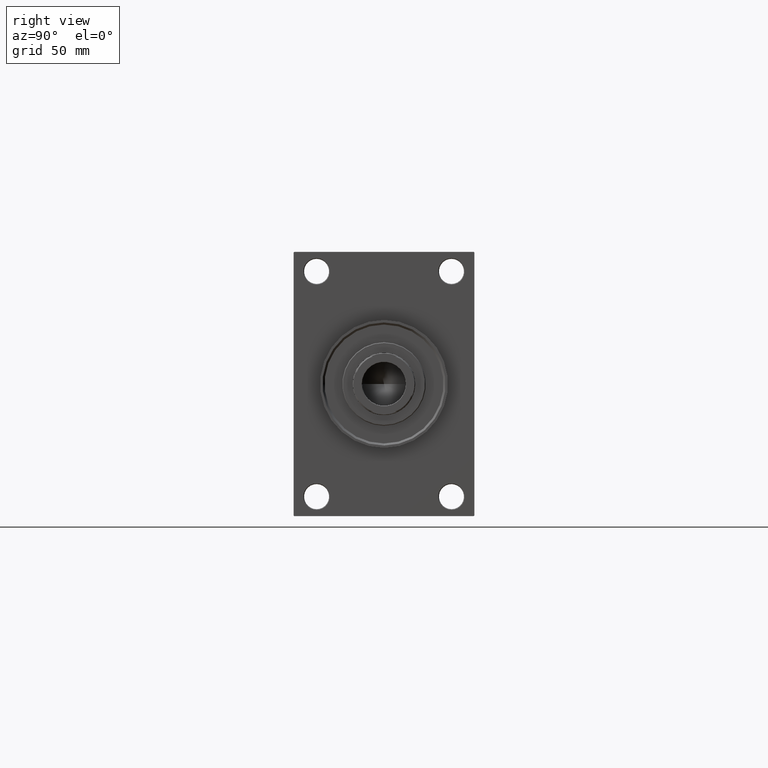
[diagram: clean part render]
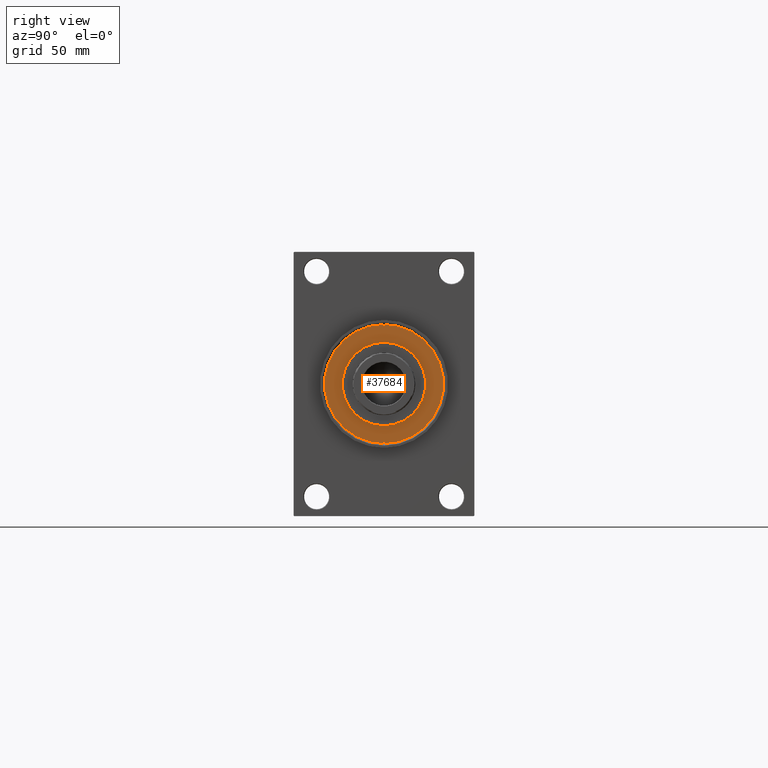
[diagram: same view with one face highlighted and labeled with its STEP entity id]
A machine part, right view. The second image highlights one B-rep face of the part: STEP entity #37684.
In plain terms, the highlighted planar face has unit normal (1, -0, -0).
Its self-contained STEP definition (entity closure, byte-faithful):
#1211 = CIRCLE ( 'NONE', #44525, 30.00000000000000000 ) ;
#1291 = CARTESIAN_POINT ( 'NONE',  ( -41.00000000000000000, 0.000000000000000000, 43.25999999999999801 ) ) ;
#1421 = DIRECTION ( 'NONE',  ( -0.000000000000000000, -0.000000000000000000, 1.000000000000000000 ) ) ;
#1849 = CARTESIAN_POINT ( 'NONE',  ( 42.25000000000000000, 0.000000000000000000, 43.25999999999999801 ) ) ;
#2018 = ORIENTED_EDGE ( 'NONE', *, *, #46657, .T. ) ;
#2025 = CIRCLE ( 'NONE', #29868, 42.75000000000000000 ) ;
#2301 = CARTESIAN_POINT ( 'NONE',  ( 0.000000000000000000, 0.000000000000000000, 43.25999999999999801 ) ) ;
#2648 = DIRECTION ( 'NONE',  ( 1.000000000000000000, 0.000000000000000000, -0.000000000000000000 ) ) ;
#3716 = VERTEX_POINT ( 'NONE', #19541 ) ;
#4207 = DIRECTION ( 'NONE',  ( -0.000000000000000000, -0.000000000000000000, 1.000000000000000000 ) ) ;
#5301 = CIRCLE ( 'NONE', #30811, 30.00000000000000000 ) ;
#5458 = DIRECTION ( 'NONE',  ( 0.000000000000000000, 0.000000000000000000, 1.000000000000000000 ) ) ;
#5487 = VERTEX_POINT ( 'NONE', #18299 ) ;
#7783 = ORIENTED_EDGE ( 'NONE', *, *, #38375, .F. ) ;
#8057 = CARTESIAN_POINT ( 'NONE',  ( 41.00000000000000000, 0.000000000000000000, 43.25999999999999801 ) ) ;
#8171 = CARTESIAN_POINT ( 'NONE',  ( -39.75000000000000000, 0.000000000000000000, 43.25999999999999801 ) ) ;
#9254 = DIRECTION ( 'NONE',  ( 0.000000000000000000, 0.000000000000000000, 1.000000000000000000 ) ) ;
#9448 = ORIENTED_EDGE ( 'NONE', *, *, #40195, .F. ) ;
#9904 = FACE_BOUND ( 'NONE', #26400, .T. ) ;
#10378 = CARTESIAN_POINT ( 'NONE',  ( 0.000000000000000000, 0.000000000000000000, 43.25999999999999801 ) ) ;
#10505 = VERTEX_POINT ( 'NONE', #1849 ) ;
#11005 = CARTESIAN_POINT ( 'NONE',  ( 41.00000000000000000, 0.000000000000000000, 43.25999999999999801 ) ) ;
#12209 = EDGE_CURVE ( 'NONE', #18532, #36355, #1211, .T. ) ;
#12321 = DIRECTION ( 'NONE',  ( 1.000000000000000000, 0.000000000000000000, 0.000000000000000000 ) ) ;
#13069 = AXIS2_PLACEMENT_3D ( 'NONE', #21281, #36052, #2648 ) ;
#13237 = EDGE_CURVE ( 'NONE', #16986, #3716, #2025, .T. ) ;
#14629 = CIRCLE ( 'NONE', #37822, 1.250000000000001110 ) ;
#15314 = DIRECTION ( 'NONE',  ( 1.000000000000000000, 0.000000000000000000, 0.000000000000000000 ) ) ;
#15449 = VERTEX_POINT ( 'NONE', #8171 ) ;
#16986 = VERTEX_POINT ( 'NONE', #20582 ) ;
#17428 = CARTESIAN_POINT ( 'NONE',  ( 39.75000000000000000, 1.530808498934193050E-16, 43.25999999999999801 ) ) ;
#18299 = CARTESIAN_POINT ( 'NONE',  ( -42.25000000000000000, 1.530808498934193050E-16, 43.25999999999999801 ) ) ;
#18480 = ORIENTED_EDGE ( 'NONE', *, *, #12209, .F. ) ;
#18532 = VERTEX_POINT ( 'NONE', #41469 ) ;
#18808 = CIRCLE ( 'NONE', #42769, 42.75000000000000000 ) ;
#19541 = CARTESIAN_POINT ( 'NONE',  ( 42.75000000000000000, 5.235365066354935472E-15, 43.25999999999999801 ) ) ;
#20582 = CARTESIAN_POINT ( 'NONE',  ( -42.75000000000000000, 0.000000000000000000, 43.25999999999999801 ) ) ;
#20807 = ORIENTED_EDGE ( 'NONE', *, *, #23463, .F. ) ;
#21281 = CARTESIAN_POINT ( 'NONE',  ( 0.000000000000000000, 0.000000000000000000, 43.25999999999999801 ) ) ;
#23403 = EDGE_CURVE ( 'NONE', #10505, #39811, #24614, .T. ) ;
#23463 = EDGE_CURVE ( 'NONE', #36355, #18532, #5301, .T. ) ;
#23972 = DIRECTION ( 'NONE',  ( 1.000000000000000000, 0.000000000000000000, 0.000000000000000000 ) ) ;
#24025 = DIRECTION ( 'NONE',  ( 1.000000000000000000, 0.000000000000000000, 0.000000000000000000 ) ) ;
#24090 = DIRECTION ( 'NONE',  ( 1.000000000000000000, 0.000000000000000000, 0.000000000000000000 ) ) ;
#24614 = CIRCLE ( 'NONE', #38550, 1.250000000000001110 ) ;
#24910 = FACE_BOUND ( 'NONE', #46304, .T. ) ;
#25149 = FACE_BOUND ( 'NONE', #39966, .T. ) ;
#25523 = AXIS2_PLACEMENT_3D ( 'NONE', #8057, #26220, #15314 ) ;
#25805 = ORIENTED_EDGE ( 'NONE', *, *, #29606, .F. ) ;
#26220 = DIRECTION ( 'NONE',  ( -0.000000000000000000, -0.000000000000000000, 1.000000000000000000 ) ) ;
#26400 = EDGE_LOOP ( 'NONE', ( #7783, #9448 ) ) ;
#29606 = EDGE_CURVE ( 'NONE', #39811, #10505, #34043, .T. ) ;
#29868 = AXIS2_PLACEMENT_3D ( 'NONE', #46025, #46512, #23972 ) ;
#30811 = AXIS2_PLACEMENT_3D ( 'NONE', #34944, #9254, #24025 ) ;
#33731 = ORIENTED_EDGE ( 'NONE', *, *, #13237, .T. ) ;
#34043 = CIRCLE ( 'NONE', #25523, 1.250000000000001110 ) ;
#34944 = CARTESIAN_POINT ( 'NONE',  ( 0.000000000000000000, 0.000000000000000000, 43.25999999999999801 ) ) ;
#36052 = DIRECTION ( 'NONE',  ( 0.000000000000000000, 0.000000000000000000, 1.000000000000000000 ) ) ;
#36355 = VERTEX_POINT ( 'NONE', #42604 ) ;
#36671 = DIRECTION ( 'NONE',  ( 1.000000000000000000, 0.000000000000000000, 0.000000000000000000 ) ) ;
#36909 = DIRECTION ( 'NONE',  ( -0.000000000000000000, -0.000000000000000000, 1.000000000000000000 ) ) ;
#37104 = CIRCLE ( 'NONE', #41736, 1.250000000000001110 ) ;
#37438 = FACE_OUTER_BOUND ( 'NONE', #47716, .T. ) ;
#37684 = ADVANCED_FACE ( 'NONE', ( #9904, #24910, #25149, #37438 ), #39698, .T. ) ;
#37822 = AXIS2_PLACEMENT_3D ( 'NONE', #1291, #4207, #41731 ) ;
#38375 = EDGE_CURVE ( 'NONE', #15449, #5487, #14629, .T. ) ;
#38550 = AXIS2_PLACEMENT_3D ( 'NONE', #11005, #36909, #36671 ) ;
#39698 = PLANE ( 'NONE',  #13069 ) ;
#39811 = VERTEX_POINT ( 'NONE', #17428 ) ;
#39926 = DIRECTION ( 'NONE',  ( 1.000000000000000000, 0.000000000000000000, 0.000000000000000000 ) ) ;
#39966 = EDGE_LOOP ( 'NONE', ( #18480, #20807 ) ) ;
#40195 = EDGE_CURVE ( 'NONE', #5487, #15449, #37104, .T. ) ;
#41469 = CARTESIAN_POINT ( 'NONE',  ( -30.00000000000000000, 0.000000000000000000, 43.25999999999999801 ) ) ;
#41731 = DIRECTION ( 'NONE',  ( 1.000000000000000000, 0.000000000000000000, 0.000000000000000000 ) ) ;
#41736 = AXIS2_PLACEMENT_3D ( 'NONE', #42817, #1421, #12321 ) ;
#42604 = CARTESIAN_POINT ( 'NONE',  ( 30.00000000000000000, 3.673940397442059178E-15, 43.25999999999999801 ) ) ;
#42769 = AXIS2_PLACEMENT_3D ( 'NONE', #2301, #5458, #24090 ) ;
#42817 = CARTESIAN_POINT ( 'NONE',  ( -41.00000000000000000, 0.000000000000000000, 43.25999999999999801 ) ) ;
#44031 = DIRECTION ( 'NONE',  ( 0.000000000000000000, 0.000000000000000000, 1.000000000000000000 ) ) ;
#44525 = AXIS2_PLACEMENT_3D ( 'NONE', #10378, #44031, #39926 ) ;
#46025 = CARTESIAN_POINT ( 'NONE',  ( 0.000000000000000000, 0.000000000000000000, 43.25999999999999801 ) ) ;
#46304 = EDGE_LOOP ( 'NONE', ( #47321, #25805 ) ) ;
#46512 = DIRECTION ( 'NONE',  ( 0.000000000000000000, 0.000000000000000000, 1.000000000000000000 ) ) ;
#46657 = EDGE_CURVE ( 'NONE', #3716, #16986, #18808, .T. ) ;
#47321 = ORIENTED_EDGE ( 'NONE', *, *, #23403, .F. ) ;
#47716 = EDGE_LOOP ( 'NONE', ( #33731, #2018 ) ) ;